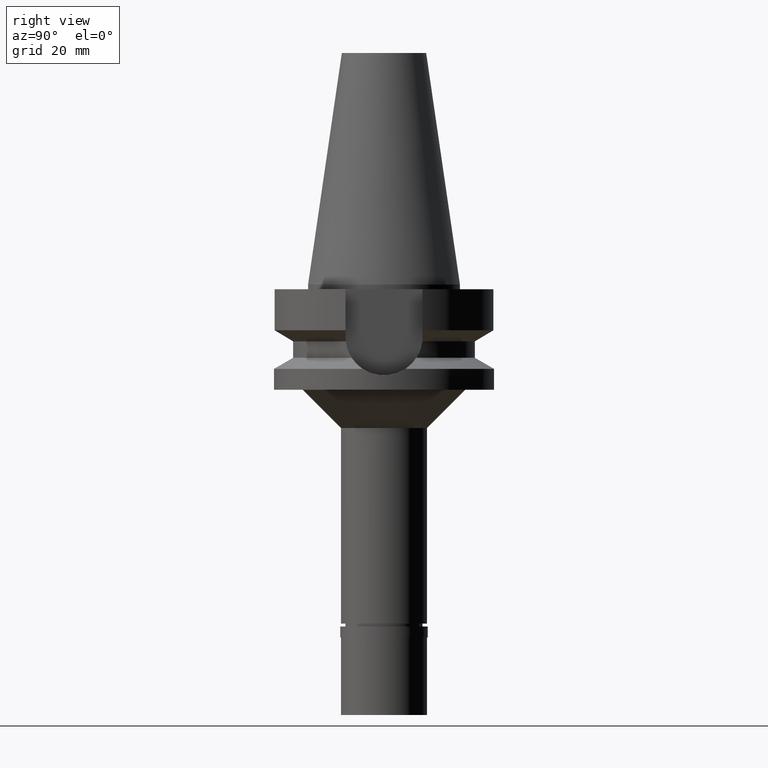
[diagram: clean part render]
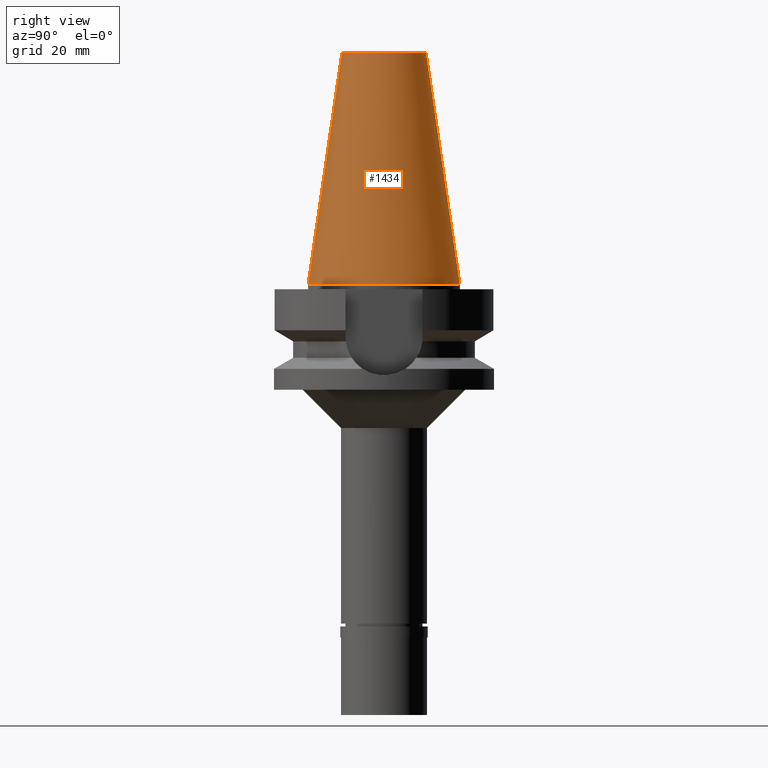
[diagram: same view with one face highlighted and labeled with its STEP entity id]
A machine part, right view. The second image highlights one B-rep face of the part: STEP entity #1434.
In plain terms, the highlighted conical surface has half-angle 8.297 deg.
Its self-contained STEP definition (entity closure, byte-faithful):
#55 = VECTOR ( 'NONE', #818, 1000.000000000000114 ) ;
#145 = VERTEX_POINT ( 'NONE', #2000 ) ;
#310 = LINE ( 'NONE', #517, #795 ) ;
#416 = EDGE_CURVE ( 'NONE', #145, #2819, #1233, .T. ) ;
#425 = DIRECTION ( 'NONE',  ( 0.0000000000000000000, 0.0000000000000000000, -1.000000000000000000 ) ) ;
#462 = AXIS2_PLACEMENT_3D ( 'NONE', #861, #2643, #598 ) ;
#483 = DIRECTION ( 'NONE',  ( 0.0000000000000000000, 0.0000000000000000000, -1.000000000000000000 ) ) ;
#517 = CARTESIAN_POINT ( 'NONE',  ( 0.0000000000000000000, -8.816791732783000768, 48.39999999999999858 ) ) ;
#598 = DIRECTION ( 'NONE',  ( 0.0000000000000000000, 1.000000000000000000, 0.0000000000000000000 ) ) ;
#625 = CONICAL_SURFACE ( 'NONE', #1212, 12.34589586639000025, 0.1448099680379422438 ) ;
#626 = EDGE_CURVE ( 'NONE', #2819, #1779, #310, .T. ) ;
#682 = CARTESIAN_POINT ( 'NONE',  ( 0.0000000000000000000, 1.521011324540999938E-14, -3.694822225953000089E-13 ) ) ;
#722 = CIRCLE ( 'NONE', #873, 15.87500000000000000 ) ;
#795 = VECTOR ( 'NONE', #1655, 1000.000000000000114 ) ;
#818 = DIRECTION ( 'NONE',  ( 0.0000000000000000000, 0.1443043893539925626, -0.9895333461855498891 ) ) ;
#861 = CARTESIAN_POINT ( 'NONE',  ( 0.0000000000000000000, 1.521011324540999938E-14, 48.39999999999999858 ) ) ;
#873 = AXIS2_PLACEMENT_3D ( 'NONE', #682, #483, #1407 ) ;
#874 = EDGE_CURVE ( 'NONE', #2751, #1779, #722, .T. ) ;
#1084 = EDGE_LOOP ( 'NONE', ( #1742, #1199, #1917, #2324 ) ) ;
#1199 = ORIENTED_EDGE ( 'NONE', *, *, #626, .T. ) ;
#1212 = AXIS2_PLACEMENT_3D ( 'NONE', #1778, #425, #2481 ) ;
#1233 = CIRCLE ( 'NONE', #462, 8.816791732783000768 ) ;
#1407 = DIRECTION ( 'NONE',  ( 0.0000000000000000000, 1.000000000000000000, 0.0000000000000000000 ) ) ;
#1434 = ADVANCED_FACE ( 'NONE', ( #2031 ), #625, .T. ) ;
#1527 = CARTESIAN_POINT ( 'NONE',  ( 0.0000000000000000000, 8.816791732783000768, 48.39999999999999858 ) ) ;
#1648 = EDGE_CURVE ( 'NONE', #145, #2751, #2717, .T. ) ;
#1655 = DIRECTION ( 'NONE',  ( 0.0000000000000000000, -0.1443043893539925626, -0.9895333461855498891 ) ) ;
#1742 = ORIENTED_EDGE ( 'NONE', *, *, #416, .T. ) ;
#1778 = CARTESIAN_POINT ( 'NONE',  ( 0.0000000000000000000, 1.521011324540999938E-14, 24.19999999999999929 ) ) ;
#1779 = VERTEX_POINT ( 'NONE', #2532 ) ;
#1862 = CARTESIAN_POINT ( 'NONE',  ( 0.0000000000000000000, 15.87500000000000000, -1.705302565823999875E-13 ) ) ;
#1917 = ORIENTED_EDGE ( 'NONE', *, *, #874, .F. ) ;
#2000 = CARTESIAN_POINT ( 'NONE',  ( 0.0000000000000000000, 8.816791732783000768, 48.39999999999999858 ) ) ;
#2031 = FACE_OUTER_BOUND ( 'NONE', #1084, .T. ) ;
#2324 = ORIENTED_EDGE ( 'NONE', *, *, #1648, .F. ) ;
#2481 = DIRECTION ( 'NONE',  ( 0.0000000000000000000, -1.000000000000000000, 0.0000000000000000000 ) ) ;
#2532 = CARTESIAN_POINT ( 'NONE',  ( 0.0000000000000000000, -15.87500000000000000, -1.705302565823999875E-13 ) ) ;
#2643 = DIRECTION ( 'NONE',  ( 0.0000000000000000000, 0.0000000000000000000, -1.000000000000000000 ) ) ;
#2717 = LINE ( 'NONE', #1527, #55 ) ;
#2751 = VERTEX_POINT ( 'NONE', #1862 ) ;
#2781 = CARTESIAN_POINT ( 'NONE',  ( 0.0000000000000000000, -8.816791732783000768, 48.39999999999999858 ) ) ;
#2819 = VERTEX_POINT ( 'NONE', #2781 ) ;